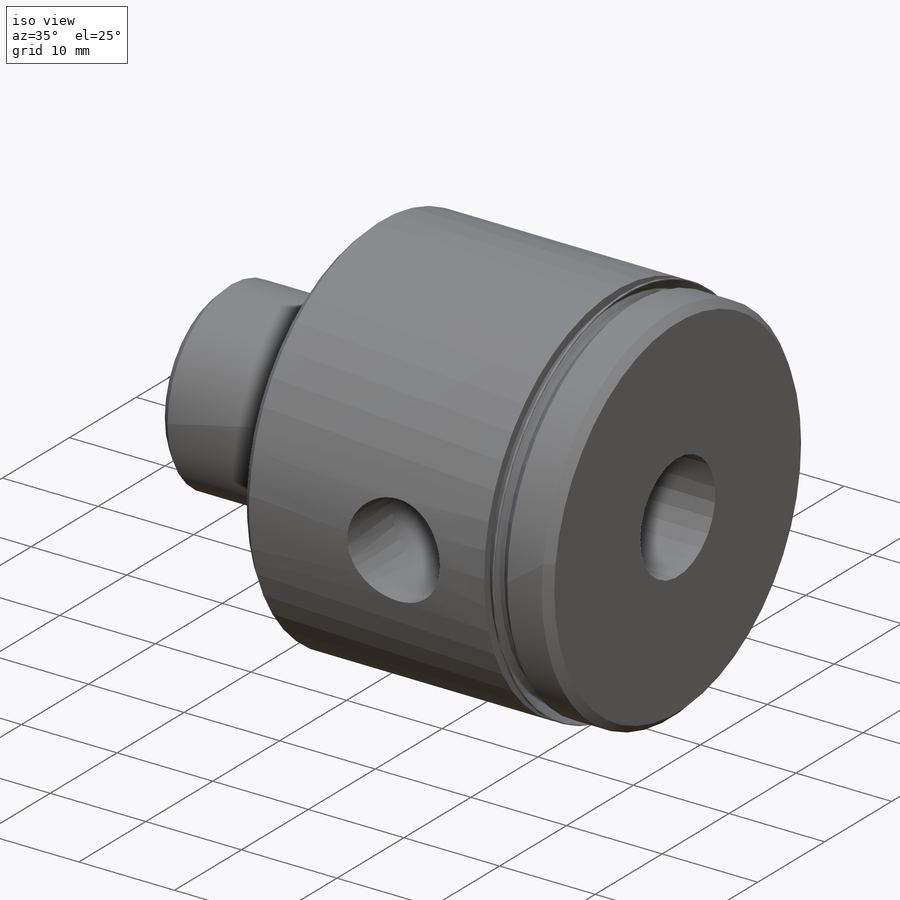
[diagram: iso view]
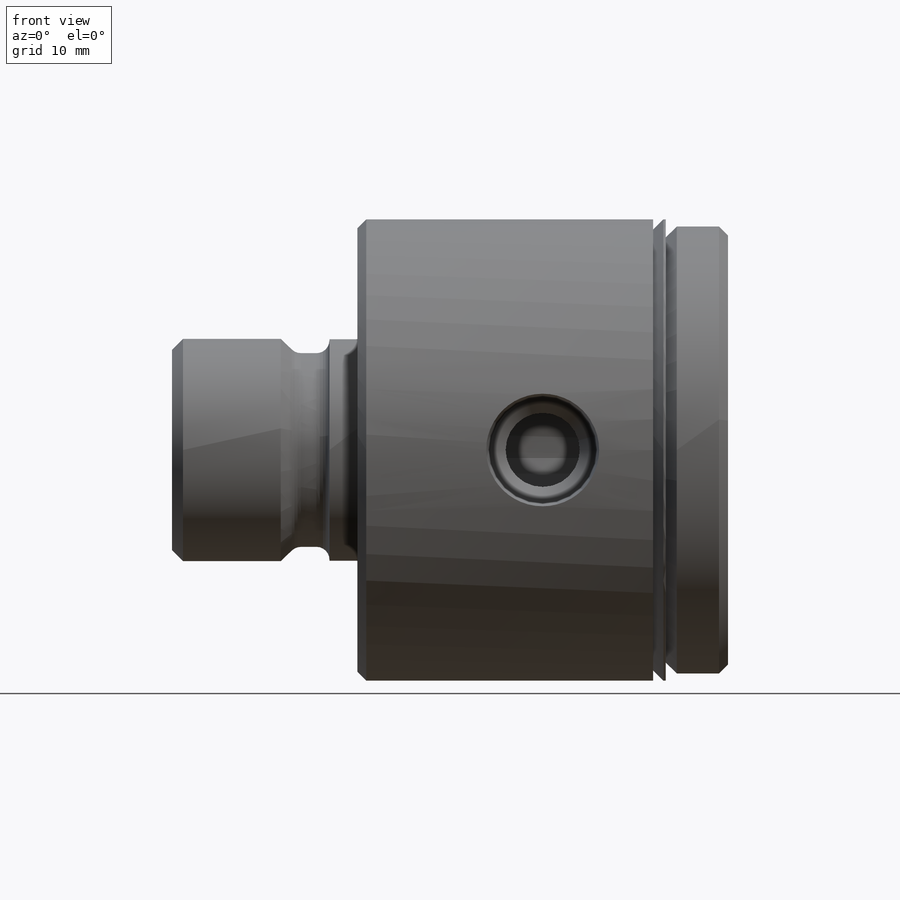
[diagram: front view]
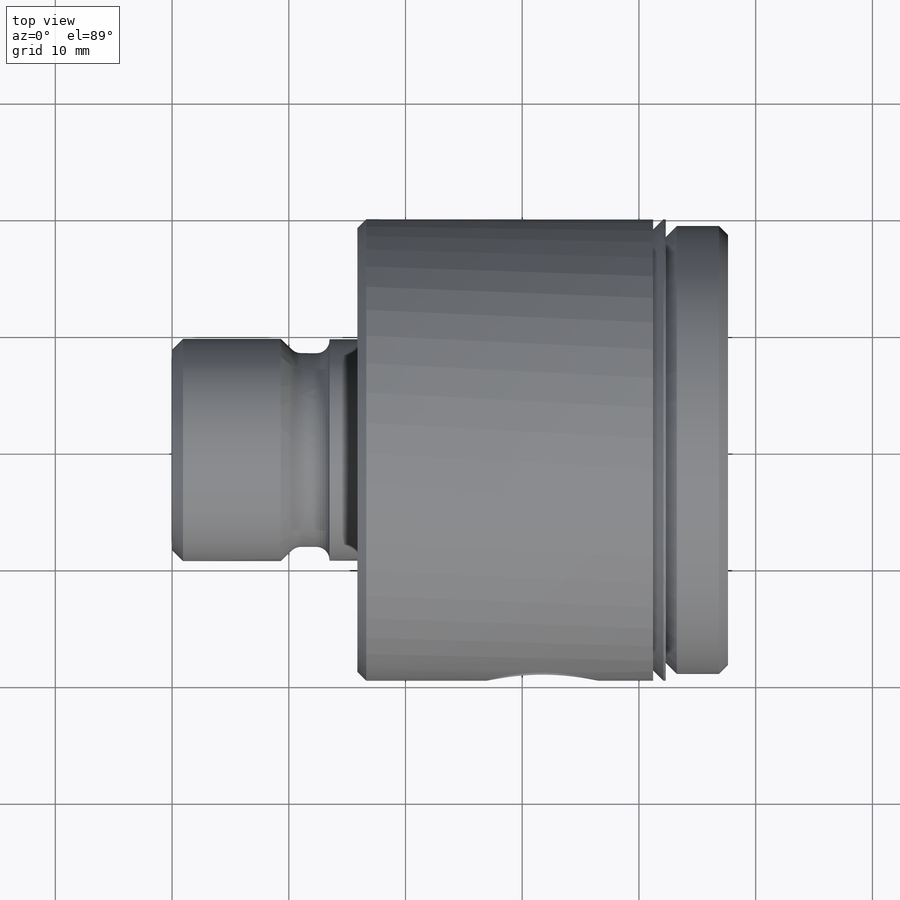
[diagram: top view]
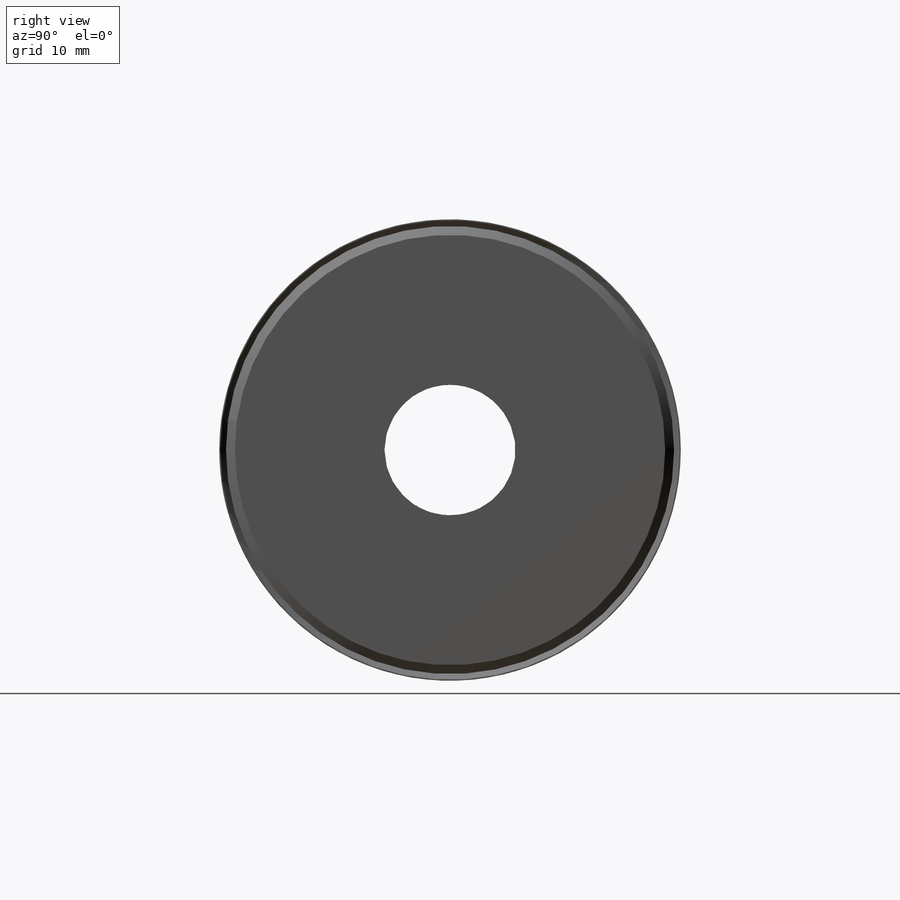
[diagram: right view]
SOLIDWORKS PART (.sldprt)
format: sldprt  version: not decoded by parser v0  size: 456,704 bytes
history: native  units: mm
features: plane x66, sketch x21, revolve x3, thread x2, cut_revolve x2, material x1 (+14 scaffold rows collapsed; 1 parser-record rows omitted)
feature tree (110):
  scaffold x14  (default folders/planes/origin — collapsed)
  material  "6061-T6 (SS)"
  sketch  "Sketch1"
  revolve  "Revolve1"  [1 undecoded]
  thread  "Cosmetic Thread1"  Diameter=10.246037mm  [1 undecoded]
  sketch  "Sketch2"
  revolve  "Revolve2"  Angle=360deg
  sketch  "Sketch3"
  cut_revolve  "Cut-Revolve1"  Angle=360deg
  plane  "Plane1"  Offset=25.527mm
  plane  "Plane2"  Offset=0mm
  plane  "Plane3"
  plane  "Plane4"  Offset=3.1242mm
  plane  "Plane5"  Offset=41.275mm
  plane  "Plane6"  Offset=15.875mm
  plane  "Plane7"  Offset=41.275mm
  sketch  "Sketch4"
  cut_revolve  "Cut-Revolve2"  [1 undecoded]
  thread  "Cosmetic Thread2"  Diameter=6.4008mm  [1 undecoded]
  sketch  "Sketch5"
  revolve  "Revolve3"  Angle=360deg
  plane  "Plane8"  Offset=42.2275mm
  plane  "Plane9"  Offset=15.875mm
  plane  "Plane10"  Offset=13.4874mm
  plane  "Plane11"  Offset=22.225mm
  plane  "Plane12"  Offset=44.45mm
  plane  "Plane13"  Offset=0mm
  plane  "Plane14"  Offset=0mm
  plane  "Plane15"
  plane  "Plane16"
  plane  "Plane17"  Offset=14.2875mm
  plane  "Plane18"  Offset=0mm
  parser-record x1  (decoder bookkeeping rows leaked as tree rows — omitted from the tree; the rows remain in map.json)
  plane  "dp1 XY"
  plane  "dp1 XZ"
  plane  "dp1 YZ"
  sketch  "dp1"
  plane  "dp2 XY"
  plane  "dp2 XZ"
  plane  "dp2 YZ"
  sketch  "dp2"
  plane  "port XY"
  plane  "port XZ"
  plane  "port YZ"
  sketch  "port"
  plane  "rod_guide XY"
  plane  "rod_guide XZ"
  plane  "rod_guide YZ"
  sketch  "rod_guide"
  plane  "s1 XY"
  plane  "s1 XZ"
  plane  "s1 YZ"
  sketch  "s1"
  plane  "s2 XY"
  plane  "s2 XZ"
  plane  "s2 YZ"
  sketch  "s2"
  plane  "t1 XY"
  plane  "t1 XZ"
  plane  "t1 YZ"
  sketch  "t1"
  plane  "t111 XY"
  plane  "t111 XZ"
  plane  "t111 YZ"
  sketch  "t111"
  plane  "to_foot_bracket XY"
  plane  "to_foot_bracket XZ"
  plane  "to_foot_bracket YZ"
  sketch  "to_foot_bracket"
  plane  "to_nut XY"
  plane  "to_nut XZ"
  plane  "to_nut YZ"
  sketch  "to_nut"
  plane  "to_rod XY"
  plane  "to_rod XZ"
  plane  "to_rod YZ"
  sketch  "to_rod"
  plane  "to_screw XY"
  plane  "to_screw XZ"
  plane  "to_screw YZ"
  sketch  "to_screw"
  plane  "to_trunnion_brackets XY"
  plane  "to_trunnion_brackets XZ"
  plane  "to_trunnion_brackets YZ"
  sketch  "to_trunnion_brackets"
  plane  "to_trunnion_brackets1 XY"
  plane  "to_trunnion_brackets1 XZ"
  plane  "to_trunnion_brackets1 YZ"
  sketch  "to_trunnion_brackets1"
  plane  "to_trunnion_brackets2 XY"
  plane  "to_trunnion_brackets2 XZ"
  plane  "to_trunnion_brackets2 YZ"
  sketch  "to_trunnion_brackets2"
  plane  "to_tube XY"
  plane  "to_tube XZ"
  plane  "to_tube YZ"
  sketch  "to_tube"
decode coverage: 5 of 28 modeling features carry decoded parameters
note: 4 parameter values undecoded
note: suppression state not decoded; provenance and decode notes live in map.json
